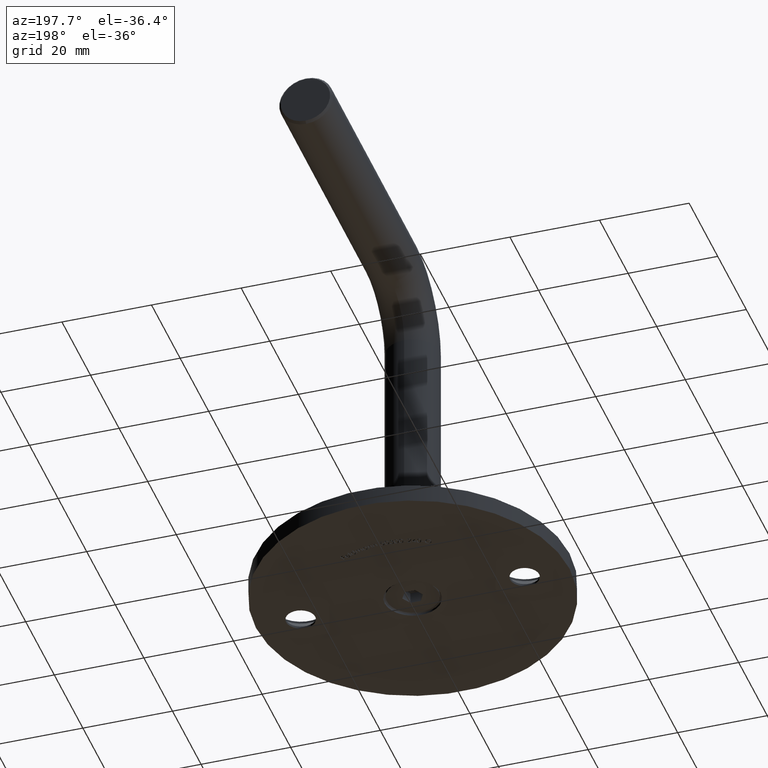
[diagram: clean part render]
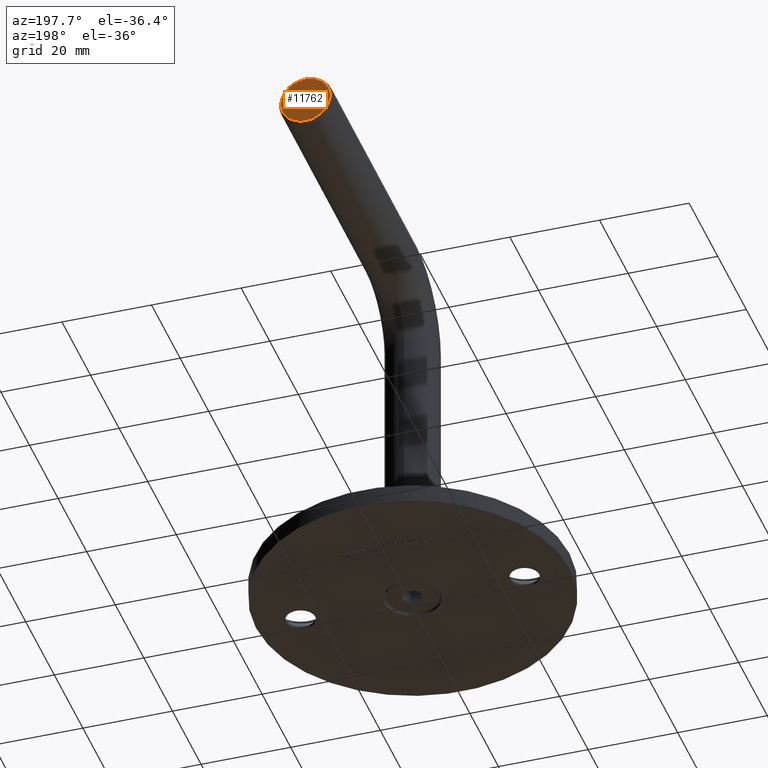
[diagram: same view with one face highlighted and labeled with its STEP entity id]
A machine part, auxiliary view. The second image highlights one B-rep face of the part: STEP entity #11762.
In plain terms, the highlighted planar face has unit normal (0, 1, 0).
Its self-contained STEP definition (entity closure, byte-faithful):
#392 = AXIS2_PLACEMENT_3D ( 'NONE', #9277, #4790, #15023 ) ;
#3786 = VERTEX_POINT ( 'NONE', #9583 ) ;
#4552 = DIRECTION ( 'NONE',  ( 0.000000000000000000, 1.000000000000000000, 6.123233995736766036E-17 ) ) ;
#4790 = DIRECTION ( 'NONE',  ( 0.000000000000000000, 1.000000000000000000, 6.123233995736766036E-17 ) ) ;
#5728 = CARTESIAN_POINT ( 'NONE',  ( 0.000000000000000000, 74.99999999999998579, 69.49999999999997158 ) ) ;
#5885 = AXIS2_PLACEMENT_3D ( 'NONE', #5915, #4552, #16136 ) ;
#5915 = CARTESIAN_POINT ( 'NONE',  ( 0.000000000000000000, 74.99999999999998579, 75.00000000000001421 ) ) ;
#5953 = AXIS2_PLACEMENT_3D ( 'NONE', #7650, #17709, #11885 ) ;
#6778 = EDGE_LOOP ( 'NONE', ( #7882, #18262 ) ) ;
#7463 = PLANE ( 'NONE',  #5953 ) ;
#7650 = CARTESIAN_POINT ( 'NONE',  ( 0.000000000000000000, 74.99999999999998579, 75.00000000000001421 ) ) ;
#7882 = ORIENTED_EDGE ( 'NONE', *, *, #15183, .T. ) ;
#9277 = CARTESIAN_POINT ( 'NONE',  ( 0.000000000000000000, 74.99999999999998579, 75.00000000000001421 ) ) ;
#9583 = CARTESIAN_POINT ( 'NONE',  ( 7.041719095097307504E-16, 74.99999999999998579, 80.50000000000005684 ) ) ;
#11762 = ADVANCED_FACE ( 'NONE', ( #13487 ), #7463, .T. ) ;
#11885 = DIRECTION ( 'NONE',  ( 1.000000000000000000, 0.000000000000000000, 0.000000000000000000 ) ) ;
#13487 = FACE_OUTER_BOUND ( 'NONE', #6778, .T. ) ;
#15023 = DIRECTION ( 'NONE',  ( 0.000000000000000000, 0.000000000000000000, 1.000000000000000000 ) ) ;
#15160 = CIRCLE ( 'NONE', #392, 5.500000000000046185 ) ;
#15183 = EDGE_CURVE ( 'NONE', #15921, #3786, #15160, .T. ) ;
#15921 = VERTEX_POINT ( 'NONE', #5728 ) ;
#16136 = DIRECTION ( 'NONE',  ( 0.000000000000000000, 0.000000000000000000, 1.000000000000000000 ) ) ;
#16589 = EDGE_CURVE ( 'NONE', #3786, #15921, #18590, .T. ) ;
#17709 = DIRECTION ( 'NONE',  ( -0.000000000000000000, 1.000000000000000000, 6.123233995736766036E-17 ) ) ;
#18262 = ORIENTED_EDGE ( 'NONE', *, *, #16589, .T. ) ;
#18590 = CIRCLE ( 'NONE', #5885, 5.500000000000046185 ) ;